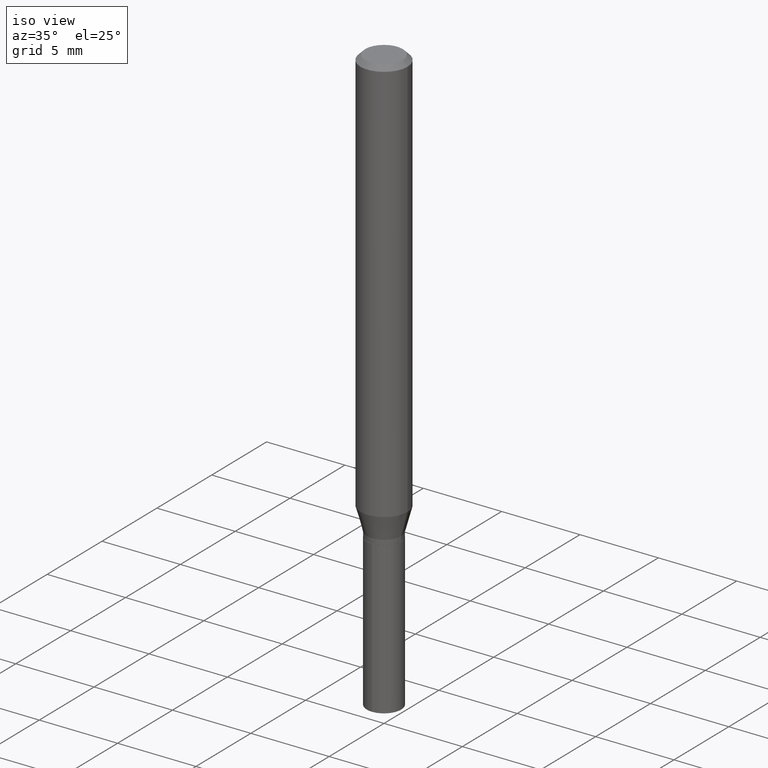
[diagram: clean part render]
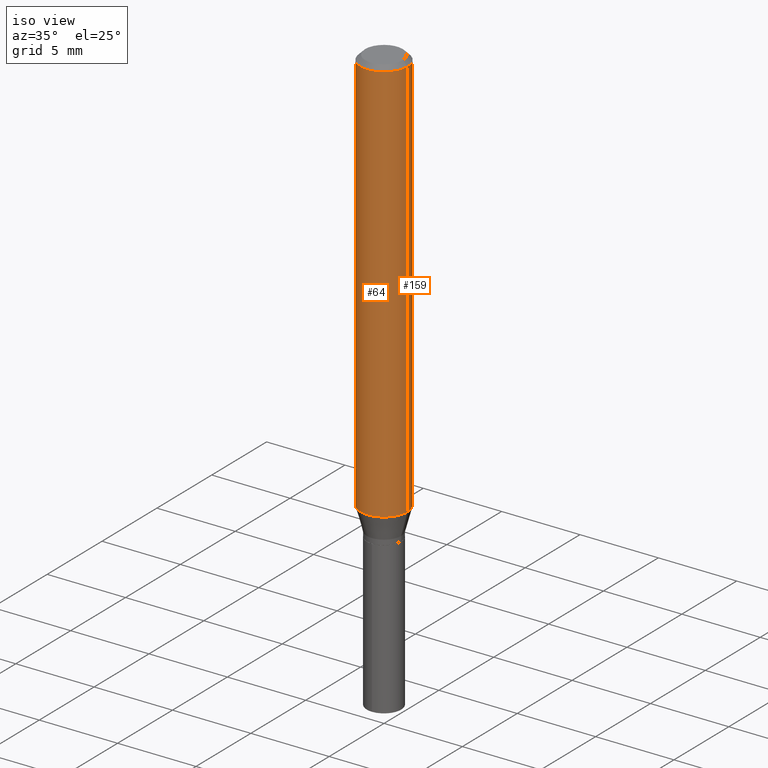
[diagram: same view with one multi-face feature highlighted, each face labeled with its STEP entity id]
A machine part, iso view. The highlighted faces form ONE feature: a constant-radius fillet chain: 2 tangent blend faces with common blend radius 1.4999 mm. The faces share edges in the B-rep.
Their STEP definitions:
[1] entity #159 (Cylinder):
#12 = EDGE_CURVE ( 'NONE', #108, #65, #156, .T. ) ;
#22 = CIRCLE ( 'NONE', #94, 0.05905000000000013016 ) ;
#29 = DIRECTION ( 'NONE',  ( -2.445468806185136877E-29, 3.491481338843145188E-15, 1.000000000000000000 ) ) ;
#33 = VECTOR ( 'NONE', #29, 39.37007874015748143 ) ;
#34 = ORIENTED_EDGE ( 'NONE', *, *, #12, .F. ) ;
#60 = CARTESIAN_POINT ( 'NONE',  ( 0.05905000000000013016, -3.983152438509936021E-15, -1.022720199780789763 ) ) ;
#65 = VERTEX_POINT ( 'NONE', #306 ) ;
#77 = CARTESIAN_POINT ( 'NONE',  ( 0.000000000000000000, 0.000000000000000000, 0.000000000000000000 ) ) ;
#94 = AXIS2_PLACEMENT_3D ( 'NONE', #432, #240, #280 ) ;
#108 = VERTEX_POINT ( 'NONE', #422 ) ;
#127 = AXIS2_PLACEMENT_3D ( 'NONE', #77, #378, #168 ) ;
#150 = ORIENTED_EDGE ( 'NONE', *, *, #335, .F. ) ;
#156 = CIRCLE ( 'NONE', #281, 0.05904999999999999832 ) ;
#159 = ADVANCED_FACE ( 'NONE', ( #466 ), #414, .T. ) ;
#168 = DIRECTION ( 'NONE',  ( 1.000000000000000000, -6.982962677686266711E-15, 4.876176775795936353E-29 ) ) ;
#172 = CARTESIAN_POINT ( 'NONE',  ( -0.05905000000000006771, 4.195754854663396409E-16, -2.904631170795525045E-30 ) ) ;
#181 = CARTESIAN_POINT ( 'NONE',  ( 0.05905000000000006771, -4.123439461173745257E-16, 2.879382386107503723E-30 ) ) ;
#192 = CARTESIAN_POINT ( 'NONE',  ( 2.888098660104664642E-31, -4.123439461173780879E-17, -0.01181000000000007565 ) ) ;
#196 = EDGE_CURVE ( 'NONE', #250, #65, #324, .T. ) ;
#240 = DIRECTION ( 'NONE',  ( -2.445468806185136597E-29, 3.491481338843145583E-15, 1.000000000000000000 ) ) ;
#250 = VERTEX_POINT ( 'NONE', #320 ) ;
#276 = EDGE_CURVE ( 'NONE', #285, #250, #22, .T. ) ;
#280 = DIRECTION ( 'NONE',  ( 1.000000000000000000, -6.982962677686265133E-15, 0.000000000000000000 ) ) ;
#281 = AXIS2_PLACEMENT_3D ( 'NONE', #192, #420, #459 ) ;
#285 = VERTEX_POINT ( 'NONE', #60 ) ;
#293 = ORIENTED_EDGE ( 'NONE', *, *, #276, .T. ) ;
#306 = CARTESIAN_POINT ( 'NONE',  ( -0.05904999999999999832, -1.386445958035808936E-15, -0.01181000000000007565 ) ) ;
#320 = CARTESIAN_POINT ( 'NONE',  ( -0.05905000000000013016, -3.151233006926221213E-15, -1.022720199780789763 ) ) ;
#321 = DIRECTION ( 'NONE',  ( -2.445468806185136877E-29, 3.491481338843145188E-15, 1.000000000000000000 ) ) ;
#324 = LINE ( 'NONE', #172, #338 ) ;
#335 = EDGE_CURVE ( 'NONE', #285, #108, #354, .T. ) ;
#338 = VECTOR ( 'NONE', #321, 39.37007874015748143 ) ;
#339 = ORIENTED_EDGE ( 'NONE', *, *, #196, .T. ) ;
#354 = LINE ( 'NONE', #181, #33 ) ;
#378 = DIRECTION ( 'NONE',  ( -2.445468806185136597E-29, 3.491481338843145583E-15, 1.000000000000000000 ) ) ;
#414 = CYLINDRICAL_SURFACE ( 'NONE', #127, 0.05905000000000006771 ) ;
#420 = DIRECTION ( 'NONE',  ( -2.445468806185136597E-29, 3.491481338843145583E-15, 1.000000000000000000 ) ) ;
#422 = CARTESIAN_POINT ( 'NONE',  ( 0.05904999999999999832, -4.535783407291118600E-16, -0.01181000000000007565 ) ) ;
#432 = CARTESIAN_POINT ( 'NONE',  ( 2.501030346019352130E-29, -3.570808492392561101E-15, -1.022720199780789763 ) ) ;
#445 = EDGE_LOOP ( 'NONE', ( #293, #339, #34, #150 ) ) ;
#459 = DIRECTION ( 'NONE',  ( 1.000000000000000000, -6.982962677686266711E-15, 0.000000000000000000 ) ) ;
#466 = FACE_OUTER_BOUND ( 'NONE', #445, .T. ) ;
[2] entity #64 (Cylinder):
#4 = CARTESIAN_POINT ( 'NONE',  ( 0.000000000000000000, 0.000000000000000000, 0.000000000000000000 ) ) ;
#29 = DIRECTION ( 'NONE',  ( -2.445468806185136877E-29, 3.491481338843145188E-15, 1.000000000000000000 ) ) ;
#33 = VECTOR ( 'NONE', #29, 39.37007874015748143 ) ;
#35 = ORIENTED_EDGE ( 'NONE', *, *, #196, .F. ) ;
#60 = CARTESIAN_POINT ( 'NONE',  ( 0.05905000000000013016, -3.983152438509936021E-15, -1.022720199780789763 ) ) ;
#61 = CIRCLE ( 'NONE', #319, 0.05905000000000013016 ) ;
#64 = ADVANCED_FACE ( 'NONE', ( #84 ), #229, .T. ) ;
#65 = VERTEX_POINT ( 'NONE', #306 ) ;
#72 = AXIS2_PLACEMENT_3D ( 'NONE', #4, #162, #377 ) ;
#84 = FACE_OUTER_BOUND ( 'NONE', #110, .T. ) ;
#108 = VERTEX_POINT ( 'NONE', #422 ) ;
#110 = EDGE_LOOP ( 'NONE', ( #35, #322, #152, #449 ) ) ;
#118 = CIRCLE ( 'NONE', #366, 0.05904999999999999832 ) ;
#135 = DIRECTION ( 'NONE',  ( 1.000000000000000000, -6.982962677686266711E-15, 0.000000000000000000 ) ) ;
#152 = ORIENTED_EDGE ( 'NONE', *, *, #335, .T. ) ;
#162 = DIRECTION ( 'NONE',  ( -2.445468806185136597E-29, 3.491481338843145583E-15, 1.000000000000000000 ) ) ;
#171 = EDGE_CURVE ( 'NONE', #250, #285, #61, .T. ) ;
#172 = CARTESIAN_POINT ( 'NONE',  ( -0.05905000000000006771, 4.195754854663396409E-16, -2.904631170795525045E-30 ) ) ;
#181 = CARTESIAN_POINT ( 'NONE',  ( 0.05905000000000006771, -4.123439461173745257E-16, 2.879382386107503723E-30 ) ) ;
#196 = EDGE_CURVE ( 'NONE', #250, #65, #324, .T. ) ;
#229 = CYLINDRICAL_SURFACE ( 'NONE', #72, 0.05905000000000006771 ) ;
#246 = DIRECTION ( 'NONE',  ( 1.000000000000000000, -6.982962677686265133E-15, 0.000000000000000000 ) ) ;
#250 = VERTEX_POINT ( 'NONE', #320 ) ;
#285 = VERTEX_POINT ( 'NONE', #60 ) ;
#306 = CARTESIAN_POINT ( 'NONE',  ( -0.05904999999999999832, -1.386445958035808936E-15, -0.01181000000000007565 ) ) ;
#313 = DIRECTION ( 'NONE',  ( -2.445468806185136597E-29, 3.491481338843145583E-15, 1.000000000000000000 ) ) ;
#319 = AXIS2_PLACEMENT_3D ( 'NONE', #477, #313, #246 ) ;
#320 = CARTESIAN_POINT ( 'NONE',  ( -0.05905000000000013016, -3.151233006926221213E-15, -1.022720199780789763 ) ) ;
#321 = DIRECTION ( 'NONE',  ( -2.445468806185136877E-29, 3.491481338843145188E-15, 1.000000000000000000 ) ) ;
#322 = ORIENTED_EDGE ( 'NONE', *, *, #171, .T. ) ;
#324 = LINE ( 'NONE', #172, #338 ) ;
#335 = EDGE_CURVE ( 'NONE', #285, #108, #354, .T. ) ;
#338 = VECTOR ( 'NONE', #321, 39.37007874015748143 ) ;
#340 = CARTESIAN_POINT ( 'NONE',  ( 2.888098660104664642E-31, -4.123439461173780879E-17, -0.01181000000000007565 ) ) ;
#354 = LINE ( 'NONE', #181, #33 ) ;
#366 = AXIS2_PLACEMENT_3D ( 'NONE', #340, #467, #135 ) ;
#377 = DIRECTION ( 'NONE',  ( 1.000000000000000000, -6.982962677686266711E-15, 4.876176775795936353E-29 ) ) ;
#422 = CARTESIAN_POINT ( 'NONE',  ( 0.05904999999999999832, -4.535783407291118600E-16, -0.01181000000000007565 ) ) ;
#449 = ORIENTED_EDGE ( 'NONE', *, *, #489, .F. ) ;
#467 = DIRECTION ( 'NONE',  ( -2.445468806185136597E-29, 3.491481338843145583E-15, 1.000000000000000000 ) ) ;
#477 = CARTESIAN_POINT ( 'NONE',  ( 2.501030346019352130E-29, -3.570808492392561101E-15, -1.022720199780789763 ) ) ;
#489 = EDGE_CURVE ( 'NONE', #65, #108, #118, .T. ) ;